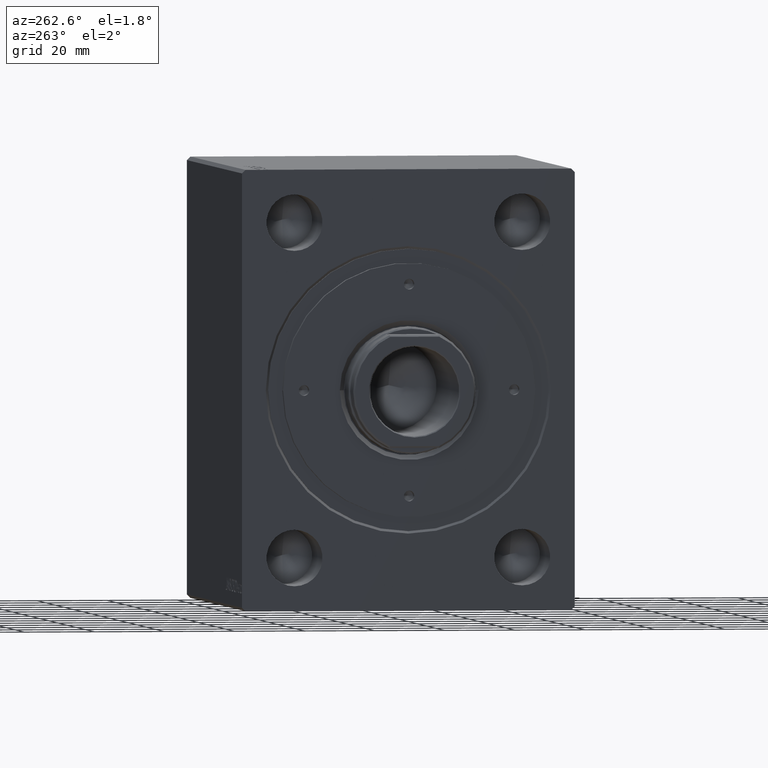
[diagram: clean part render]
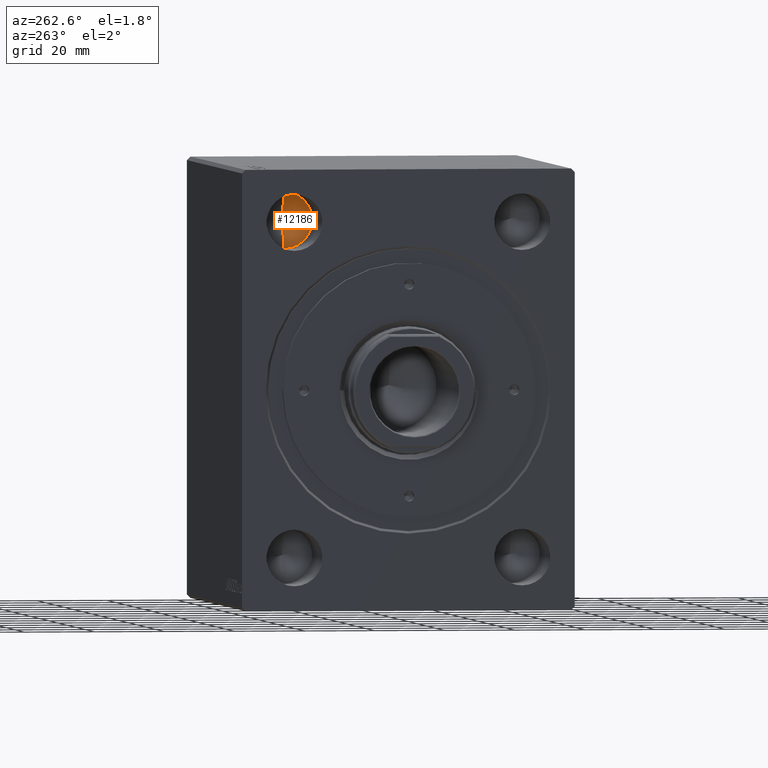
[diagram: same view with one face highlighted and labeled with its STEP entity id]
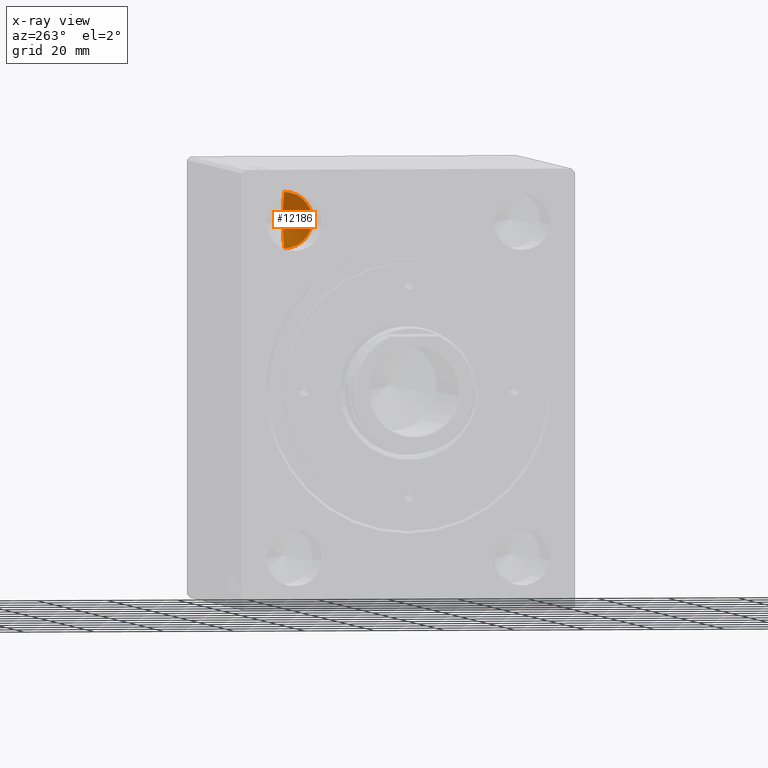
[diagram: x-ray of the same camera — body ghosted, the highlighted face saturated]
A machine part, auxiliary view. The second image highlights one B-rep face of the part: STEP entity #12186.
The next image is the same camera in x-ray: the body ghosted, the highlighted face saturated — about 0% of this face is hidden behind the body in this view.
In plain terms, the highlighted conical surface has half-angle 59 deg.
Its self-contained STEP definition (entity closure, byte-faithful):
#886 = ORIENTED_EDGE ( 'NONE', *, *, #16423, .F. ) ;
#2112 = CARTESIAN_POINT ( 'NONE',  ( 22.67000000000000171, 32.50000000000000000, 47.50000000000000000 ) ) ;
#2911 = VERTEX_POINT ( 'NONE', #4501 ) ;
#4501 = CARTESIAN_POINT ( 'NONE',  ( 22.67000000000000171, 32.50000000000000000, 39.50000000000000711 ) ) ;
#5829 = CARTESIAN_POINT ( 'NONE',  ( 22.67000000000000171, 32.50000000000000000, 55.49999999999999289 ) ) ;
#7523 = DIRECTION ( 'NONE',  ( 0.000000000000000000, 0.000000000000000000, 1.000000000000000000 ) ) ;
#10910 = AXIS2_PLACEMENT_3D ( 'NONE', #28193, #24873, #7523 ) ;
#11294 = EDGE_CURVE ( 'NONE', #25632, #2911, #40112, .T. ) ;
#12186 = ADVANCED_FACE ( 'NONE', ( #14644 ), #14046, .F. ) ;
#12769 = CARTESIAN_POINT ( 'NONE',  ( 22.67000000000000171, 32.50000000000000000, 39.50000000000000711 ) ) ;
#13720 = ORIENTED_EDGE ( 'NONE', *, *, #11294, .T. ) ;
#14046 = CONICAL_SURFACE ( 'NONE', #10910, 7.999999999999992895, 1.029744258676653423 ) ;
#14178 = VECTOR ( 'NONE', #36561, 1000.000000000000000 ) ;
#14644 = FACE_OUTER_BOUND ( 'NONE', #39246, .T. ) ;
#15636 = CARTESIAN_POINT ( 'NONE',  ( 27.47688495222049099, 32.49999999999999289, 47.50000000000000000 ) ) ;
#15711 = DIRECTION ( 'NONE',  ( -1.000000000000000000, -0.000000000000000000, -0.000000000000000000 ) ) ;
#16423 = EDGE_CURVE ( 'NONE', #25632, #37281, #41644, .T. ) ;
#20625 = CIRCLE ( 'NONE', #38354, 7.999999999999992895 ) ;
#24873 = DIRECTION ( 'NONE',  ( -1.000000000000000000, -0.000000000000000000, -0.000000000000000000 ) ) ;
#25178 = CARTESIAN_POINT ( 'NONE',  ( 22.67000000000000171, 32.50000000000000000, 55.49999999999999289 ) ) ;
#25632 = VERTEX_POINT ( 'NONE', #15636 ) ;
#26082 = EDGE_CURVE ( 'NONE', #2911, #37281, #20625, .T. ) ;
#28193 = CARTESIAN_POINT ( 'NONE',  ( 22.67000000000000171, 32.50000000000000000, 47.50000000000000000 ) ) ;
#31116 = VECTOR ( 'NONE', #38738, 1000.000000000000000 ) ;
#36561 = DIRECTION ( 'NONE',  ( -0.5150380749100550437, 1.049727191138617956E-16, -0.8571673007021117785 ) ) ;
#37281 = VERTEX_POINT ( 'NONE', #5829 ) ;
#38354 = AXIS2_PLACEMENT_3D ( 'NONE', #2112, #15711, #39920 ) ;
#38738 = DIRECTION ( 'NONE',  ( -0.5150380749100550437, 0.000000000000000000, 0.8571673007021117785 ) ) ;
#39246 = EDGE_LOOP ( 'NONE', ( #886, #13720, #39784 ) ) ;
#39784 = ORIENTED_EDGE ( 'NONE', *, *, #26082, .T. ) ;
#39920 = DIRECTION ( 'NONE',  ( 0.000000000000000000, 0.000000000000000000, 1.000000000000000000 ) ) ;
#40112 = LINE ( 'NONE', #12769, #14178 ) ;
#41644 = LINE ( 'NONE', #25178, #31116 ) ;